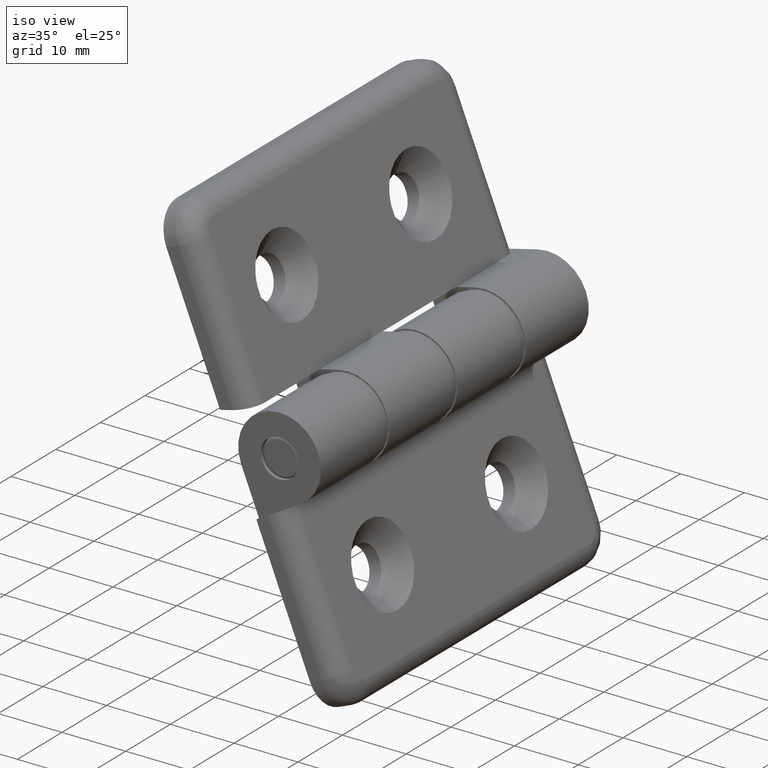
[diagram: clean part render]
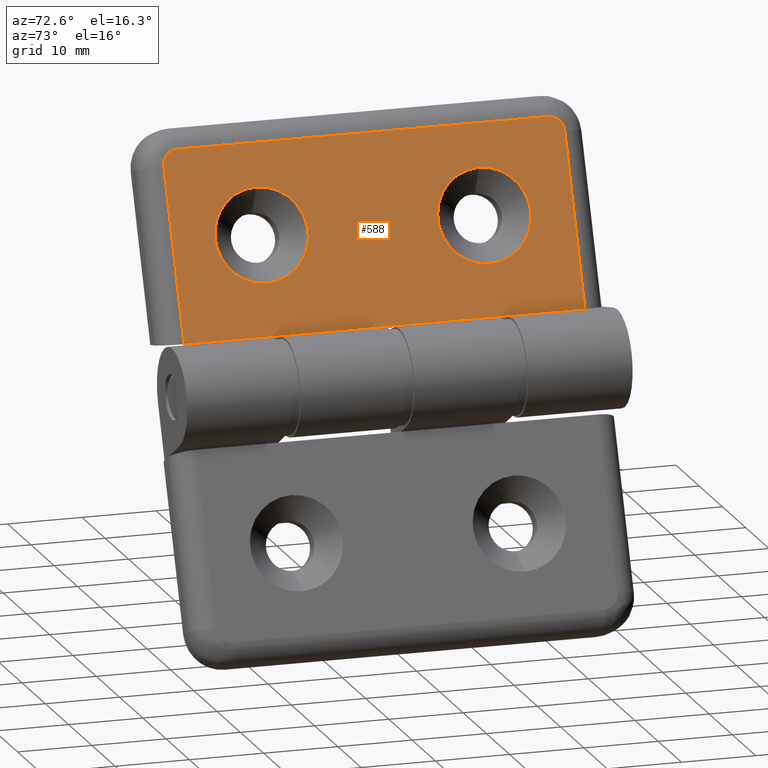
[diagram: tour spotlight — one face highlighted and labeled with its STEP entity id]
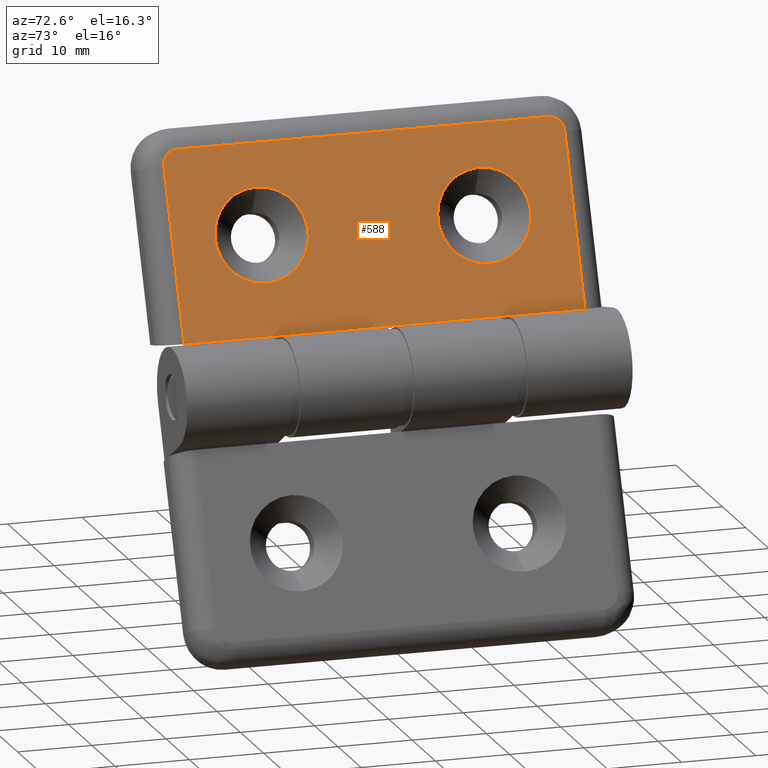
[diagram: tour spotlight — one face highlighted and labeled with its STEP entity id]
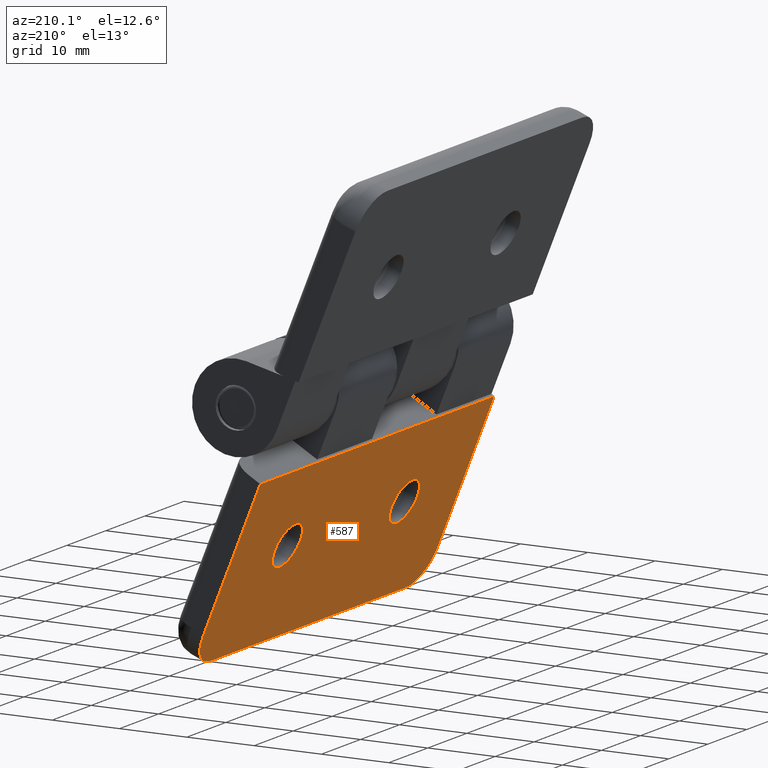
[diagram: tour spotlight — one face highlighted and labeled with its STEP entity id]
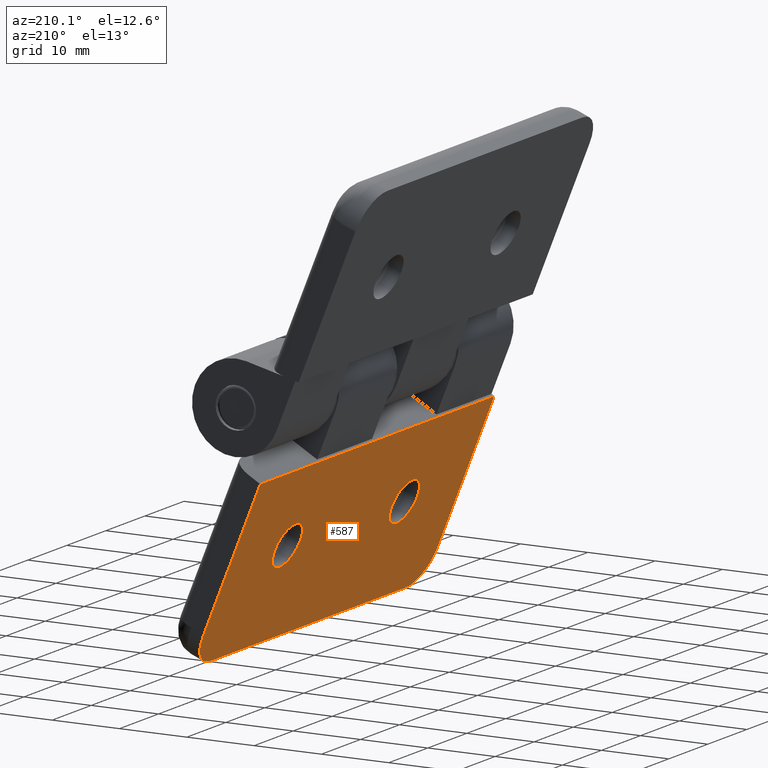
[diagram: tour spotlight — one face highlighted and labeled with its STEP entity id]
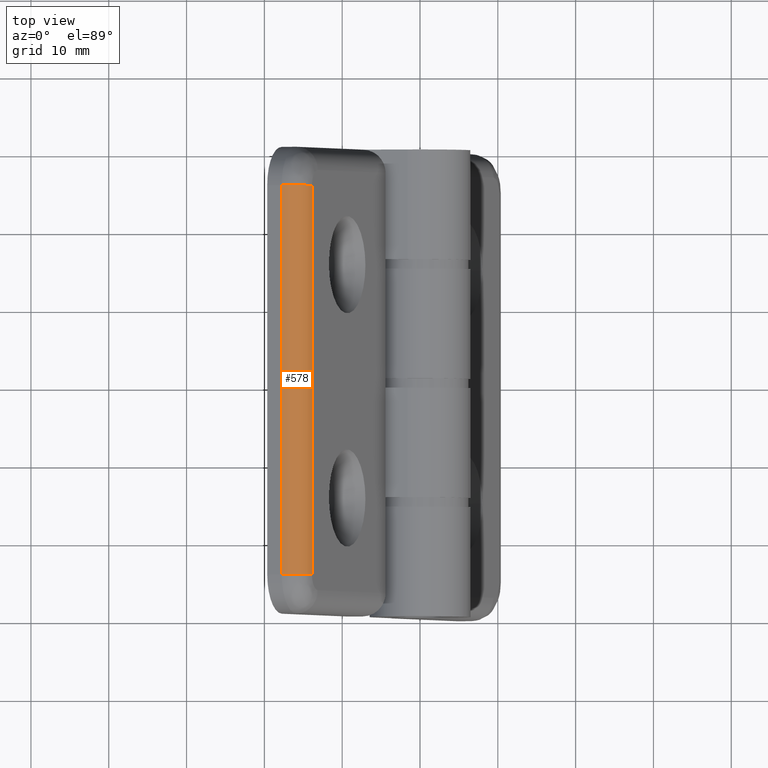
[diagram: tour spotlight — one face highlighted and labeled with its STEP entity id]
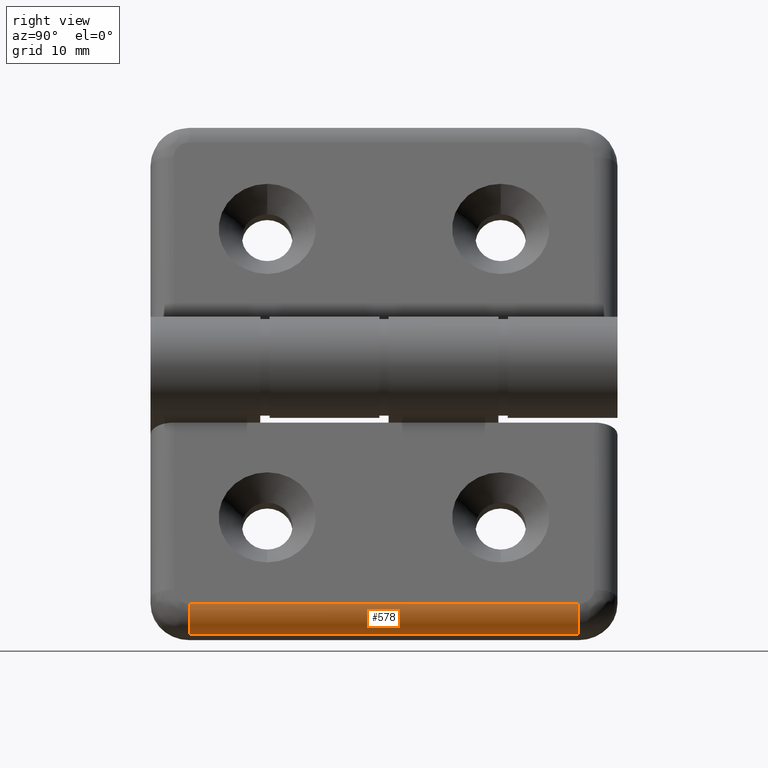
[diagram: tour spotlight — one face highlighted and labeled with its STEP entity id]
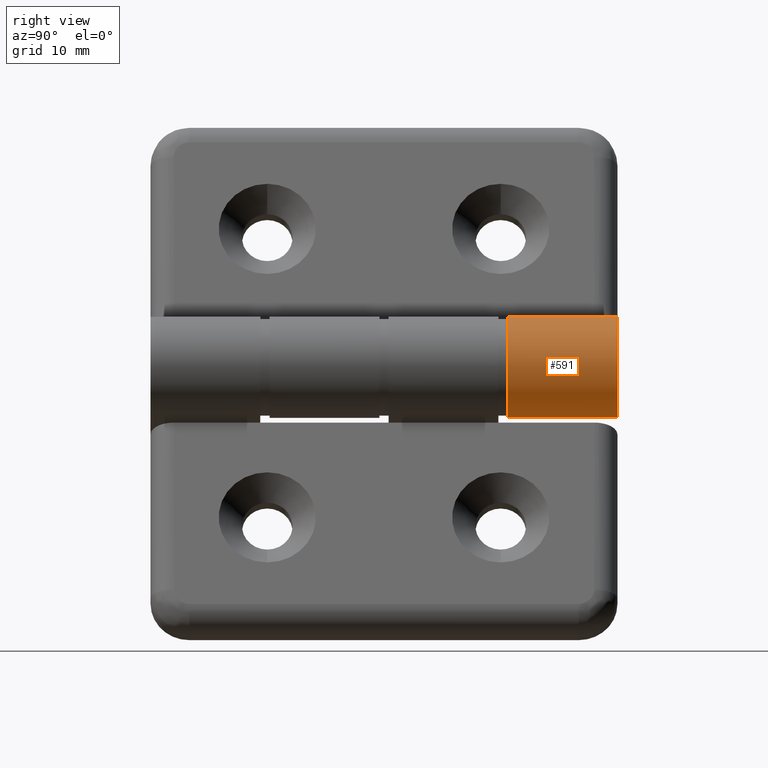
[diagram: tour spotlight — one face highlighted and labeled with its STEP entity id]
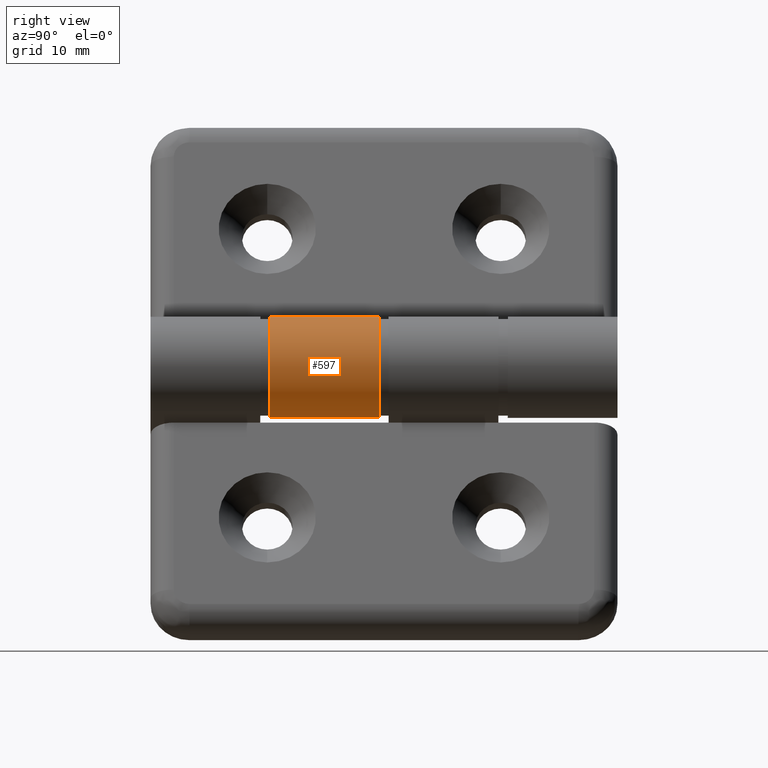
[diagram: tour spotlight — one face highlighted and labeled with its STEP entity id]
A machine part: a face-by-face anatomy tour. The part has 73 B-rep faces; the first image is the clean iso view, then the 8 largest visible faces are spotlighted one at a time (largest first), each with its STEP entity span.

Face 1 — auxiliary view, entity #588. In plain terms, the highlighted planar face has unit normal (0.9268, -0, 0.3755).
Definition (entity closure, byte-faithful):
#54=PLANE('',#647);
#70=LINE('',#908,#107);
#72=LINE('',#930,#109);
#74=LINE('',#950,#111);
#81=LINE('',#964,#118);
#85=LINE('',#971,#122);
#95=LINE('',#999,#132);
#96=LINE('',#1000,#133);
#107=VECTOR('',#717,23.1461538461538);
#109=VECTOR('',#731,50.);
#111=VECTOR('',#743,23.1461538461538);
#118=VECTOR('',#752,16.5);
#122=VECTOR('',#756,12.3);
#132=VECTOR('',#788,14.1);
#133=VECTOR('',#789,11.1);
#165=FACE_BOUND('',#240,.T.);
#166=FACE_BOUND('',#241,.T.);
#195=FACE_OUTER_BOUND('',#239,.T.);
#239=EDGE_LOOP('',(#499,#500,#501,#502,#503,#504,#505,#506,#507));
#240=EDGE_LOOP('',(#508));
#241=EDGE_LOOP('',(#509));
#274=CIRCLE('',#614,6.25);
#277=CIRCLE('',#619,6.25);
#282=CIRCLE('',#627,2.);
#286=CIRCLE('',#632,2.);
#306=VERTEX_POINT('',#888);
#309=VERTEX_POINT('',#896);
#313=VERTEX_POINT('',#905);
#314=VERTEX_POINT('',#907);
#317=VERTEX_POINT('',#922);
#319=VERTEX_POINT('',#928);
#321=VERTEX_POINT('',#942);
#323=VERTEX_POINT('',#948);
#328=VERTEX_POINT('',#961);
#329=VERTEX_POINT('',#963);
#332=VERTEX_POINT('',#969);
#357=EDGE_CURVE('',#306,#306,#274,.T.);
#360=EDGE_CURVE('',#309,#309,#277,.T.);
#364=EDGE_CURVE('',#313,#314,#70,.T.);
#368=EDGE_CURVE('',#317,#313,#282,.T.);
#371=EDGE_CURVE('',#319,#317,#72,.T.);
#374=EDGE_CURVE('',#321,#319,#286,.T.);
#377=EDGE_CURVE('',#323,#321,#74,.T.);
#384=EDGE_CURVE('',#328,#329,#81,.T.);
#388=EDGE_CURVE('',#332,#323,#85,.T.);
#402=EDGE_CURVE('',#329,#332,#95,.T.);
#403=EDGE_CURVE('',#314,#328,#96,.T.);
#499=ORIENTED_EDGE('',*,*,#377,.F.);
#500=ORIENTED_EDGE('',*,*,#388,.F.);
#501=ORIENTED_EDGE('',*,*,#402,.F.);
#502=ORIENTED_EDGE('',*,*,#384,.F.);
#503=ORIENTED_EDGE('',*,*,#403,.F.);
#504=ORIENTED_EDGE('',*,*,#364,.F.);
#505=ORIENTED_EDGE('',*,*,#368,.F.);
#506=ORIENTED_EDGE('',*,*,#371,.F.);
#507=ORIENTED_EDGE('',*,*,#374,.F.);
#508=ORIENTED_EDGE('',*,*,#357,.T.);
#509=ORIENTED_EDGE('',*,*,#360,.T.);
#588=ADVANCED_FACE('',(#195,#165,#166),#54,.T.);
#614=AXIS2_PLACEMENT_3D('',#889,#695,#696);
#619=AXIS2_PLACEMENT_3D('',#897,#705,#706);
#627=AXIS2_PLACEMENT_3D('',#924,#723,#724);
#632=AXIS2_PLACEMENT_3D('',#944,#735,#736);
#647=AXIS2_PLACEMENT_3D('',#998,#786,#787);
#695=DIRECTION('center_axis',(0.,1.38777878078145E-16,-1.));
#696=DIRECTION('ref_axis',(1.,1.08845394571094E-16,1.51053328971548E-32));
#705=DIRECTION('center_axis',(0.,1.38777878078145E-16,-1.));
#706=DIRECTION('ref_axis',(1.,1.08845394571094E-16,1.51053328971548E-32));
#717=DIRECTION('',(-1.,0.,0.));
#723=DIRECTION('center_axis',(0.,1.38777878078145E-16,-1.));
#724=DIRECTION('ref_axis',(0.707106781186548,-0.707106781186547,-9.81307786677359E-17));
#731=DIRECTION('',(0.,-1.,-1.38777878078145E-16));
#735=DIRECTION('center_axis',(0.,1.38777878078145E-16,-1.));
#736=DIRECTION('ref_axis',(0.707106781186547,0.707106781186548,9.8130778667736E-17));
#743=DIRECTION('',(1.,0.,0.));
#752=DIRECTION('',(-1.99270799291695E-17,1.,1.38777878078145E-16));
#756=DIRECTION('',(-1.99270799291695E-17,1.,1.38777878078145E-16));
#786=DIRECTION('center_axis',(0.,-1.38777878078145E-16,1.));
#787=DIRECTION('ref_axis',(0.,1.,1.77635683940025E-16));
#788=DIRECTION('',(-1.99270799291695E-17,1.,1.38777878078145E-16));
#789=DIRECTION('',(-1.99270799291695E-17,1.,1.38777878078145E-16));
#888=CARTESIAN_POINT('',(18.75,15.,4.99999999999999));
#889=CARTESIAN_POINT('Origin',(12.5,15.,4.99999999999999));
#896=CARTESIAN_POINT('',(18.75,45.,5.));
#897=CARTESIAN_POINT('Origin',(12.5,45.,5.));
#905=CARTESIAN_POINT('',(22.5,3.,4.99999999999999));
#907=CARTESIAN_POINT('',(-0.646153846153845,3.,4.99999999999999));
#908=CARTESIAN_POINT('',(10.5926638014431,3.,4.99999999999999));
#922=CARTESIAN_POINT('',(24.5,5.,4.99999999999999));
#924=CARTESIAN_POINT('Origin',(22.5,5.,4.99999999999999));
#928=CARTESIAN_POINT('',(24.5,55.,5.));
#930=CARTESIAN_POINT('',(24.5,15.,4.99999999999999));
#942=CARTESIAN_POINT('',(22.5,57.,5.));
#944=CARTESIAN_POINT('Origin',(22.5,55.,5.));
#948=CARTESIAN_POINT('',(-0.646153846153846,57.,5.));
#950=CARTESIAN_POINT('',(27.5,57.,5.));
#961=CARTESIAN_POINT('',(-0.646153846153845,14.1,4.99999999999999));
#963=CARTESIAN_POINT('',(-0.646153846153845,30.6,5.));
#964=CARTESIAN_POINT('',(-0.646153846153845,15.,4.99999999999999));
#969=CARTESIAN_POINT('',(-0.646153846153846,44.7,5.));
#971=CARTESIAN_POINT('',(-0.646153846153845,15.,4.99999999999999));
#998=CARTESIAN_POINT('Origin',(27.5,0.,4.99999999999999));
#999=CARTESIAN_POINT('',(-0.646153846153845,-7.33688805523977E-17,4.99999999999999));
#1000=CARTESIAN_POINT('',(-0.646153846153845,-7.33688805523977E-17,4.99999999999999));

Face 2 — auxiliary view, entity #588. In plain terms, the highlighted planar face has unit normal (0.9268, 0, 0.3755).
Definition (entity closure, byte-faithful):
#54=PLANE('',#647);
#70=LINE('',#908,#107);
#72=LINE('',#930,#109);
#74=LINE('',#950,#111);
#81=LINE('',#964,#118);
#85=LINE('',#971,#122);
#95=LINE('',#999,#132);
#96=LINE('',#1000,#133);
#107=VECTOR('',#717,23.1461538461538);
#109=VECTOR('',#731,50.);
#111=VECTOR('',#743,23.1461538461538);
#118=VECTOR('',#752,16.5);
#122=VECTOR('',#756,12.3);
#132=VECTOR('',#788,14.1);
#133=VECTOR('',#789,11.1);
#165=FACE_BOUND('',#240,.T.);
#166=FACE_BOUND('',#241,.T.);
#195=FACE_OUTER_BOUND('',#239,.T.);
#239=EDGE_LOOP('',(#499,#500,#501,#502,#503,#504,#505,#506,#507));
#240=EDGE_LOOP('',(#508));
#241=EDGE_LOOP('',(#509));
#274=CIRCLE('',#614,6.25);
#277=CIRCLE('',#619,6.25);
#282=CIRCLE('',#627,2.);
#286=CIRCLE('',#632,2.);
#306=VERTEX_POINT('',#888);
#309=VERTEX_POINT('',#896);
#313=VERTEX_POINT('',#905);
#314=VERTEX_POINT('',#907);
#317=VERTEX_POINT('',#922);
#319=VERTEX_POINT('',#928);
#321=VERTEX_POINT('',#942);
#323=VERTEX_POINT('',#948);
#328=VERTEX_POINT('',#961);
#329=VERTEX_POINT('',#963);
#332=VERTEX_POINT('',#969);
#357=EDGE_CURVE('',#306,#306,#274,.T.);
#360=EDGE_CURVE('',#309,#309,#277,.T.);
#364=EDGE_CURVE('',#313,#314,#70,.T.);
#368=EDGE_CURVE('',#317,#313,#282,.T.);
#371=EDGE_CURVE('',#319,#317,#72,.T.);
#374=EDGE_CURVE('',#321,#319,#286,.T.);
#377=EDGE_CURVE('',#323,#321,#74,.T.);
#384=EDGE_CURVE('',#328,#329,#81,.T.);
#388=EDGE_CURVE('',#332,#323,#85,.T.);
#402=EDGE_CURVE('',#329,#332,#95,.T.);
#403=EDGE_CURVE('',#314,#328,#96,.T.);
#499=ORIENTED_EDGE('',*,*,#377,.F.);
#500=ORIENTED_EDGE('',*,*,#388,.F.);
#501=ORIENTED_EDGE('',*,*,#402,.F.);
#502=ORIENTED_EDGE('',*,*,#384,.F.);
#503=ORIENTED_EDGE('',*,*,#403,.F.);
#504=ORIENTED_EDGE('',*,*,#364,.F.);
#505=ORIENTED_EDGE('',*,*,#368,.F.);
#506=ORIENTED_EDGE('',*,*,#371,.F.);
#507=ORIENTED_EDGE('',*,*,#374,.F.);
#508=ORIENTED_EDGE('',*,*,#357,.T.);
#509=ORIENTED_EDGE('',*,*,#360,.T.);
#588=ADVANCED_FACE('',(#195,#165,#166),#54,.T.);
#614=AXIS2_PLACEMENT_3D('',#889,#695,#696);
#619=AXIS2_PLACEMENT_3D('',#897,#705,#706);
#627=AXIS2_PLACEMENT_3D('',#924,#723,#724);
#632=AXIS2_PLACEMENT_3D('',#944,#735,#736);
#647=AXIS2_PLACEMENT_3D('',#998,#786,#787);
#695=DIRECTION('center_axis',(0.,1.38777878078145E-16,-1.));
#696=DIRECTION('ref_axis',(1.,1.08845394571094E-16,1.51053328971548E-32));
#705=DIRECTION('center_axis',(0.,1.38777878078145E-16,-1.));
#706=DIRECTION('ref_axis',(1.,1.08845394571094E-16,1.51053328971548E-32));
#717=DIRECTION('',(-1.,0.,0.));
#723=DIRECTION('center_axis',(0.,1.38777878078145E-16,-1.));
#724=DIRECTION('ref_axis',(0.707106781186548,-0.707106781186547,-9.81307786677359E-17));
#731=DIRECTION('',(0.,-1.,-1.38777878078145E-16));
#735=DIRECTION('center_axis',(0.,1.38777878078145E-16,-1.));
#736=DIRECTION('ref_axis',(0.707106781186547,0.707106781186548,9.8130778667736E-17));
#743=DIRECTION('',(1.,0.,0.));
#752=DIRECTION('',(-1.99270799291695E-17,1.,1.38777878078145E-16));
#756=DIRECTION('',(-1.99270799291695E-17,1.,1.38777878078145E-16));
#786=DIRECTION('center_axis',(0.,-1.38777878078145E-16,1.));
#787=DIRECTION('ref_axis',(0.,1.,1.77635683940025E-16));
#788=DIRECTION('',(-1.99270799291695E-17,1.,1.38777878078145E-16));
#789=DIRECTION('',(-1.99270799291695E-17,1.,1.38777878078145E-16));
#888=CARTESIAN_POINT('',(18.75,15.,4.99999999999999));
#889=CARTESIAN_POINT('Origin',(12.5,15.,4.99999999999999));
#896=CARTESIAN_POINT('',(18.75,45.,5.));
#897=CARTESIAN_POINT('Origin',(12.5,45.,5.));
#905=CARTESIAN_POINT('',(22.5,3.,4.99999999999999));
#907=CARTESIAN_POINT('',(-0.646153846153845,3.,4.99999999999999));
#908=CARTESIAN_POINT('',(10.5926638014431,3.,4.99999999999999));
#922=CARTESIAN_POINT('',(24.5,5.,4.99999999999999));
#924=CARTESIAN_POINT('Origin',(22.5,5.,4.99999999999999));
#928=CARTESIAN_POINT('',(24.5,55.,5.));
#930=CARTESIAN_POINT('',(24.5,15.,4.99999999999999));
#942=CARTESIAN_POINT('',(22.5,57.,5.));
#944=CARTESIAN_POINT('Origin',(22.5,55.,5.));
#948=CARTESIAN_POINT('',(-0.646153846153846,57.,5.));
#950=CARTESIAN_POINT('',(27.5,57.,5.));
#961=CARTESIAN_POINT('',(-0.646153846153845,14.1,4.99999999999999));
#963=CARTESIAN_POINT('',(-0.646153846153845,30.6,5.));
#964=CARTESIAN_POINT('',(-0.646153846153845,15.,4.99999999999999));
#969=CARTESIAN_POINT('',(-0.646153846153846,44.7,5.));
#971=CARTESIAN_POINT('',(-0.646153846153845,15.,4.99999999999999));
#998=CARTESIAN_POINT('Origin',(27.5,0.,4.99999999999999));
#999=CARTESIAN_POINT('',(-0.646153846153845,-7.33688805523977E-17,4.99999999999999));
#1000=CARTESIAN_POINT('',(-0.646153846153845,-7.33688805523977E-17,4.99999999999999));

Face 3 — auxiliary view, entity #587. In plain terms, the highlighted planar face has unit normal (-0.9268, -0, -0.3755).
Definition (entity closure, byte-faithful):
#53=PLANE('',#646);
#77=LINE('',#956,#114);
#87=LINE('',#975,#124);
#90=LINE('',#983,#127);
#94=LINE('',#994,#131);
#114=VECTOR('',#748,60.);
#124=VECTOR('',#760,22.4282051282051);
#127=VECTOR('',#769,50.);
#131=VECTOR('',#781,22.4282051282051);
#163=FACE_BOUND('',#237,.T.);
#164=FACE_BOUND('',#238,.T.);
#194=FACE_OUTER_BOUND('',#236,.T.);
#236=EDGE_LOOP('',(#491,#492,#493,#494,#495,#496));
#237=EDGE_LOOP('',(#497));
#238=EDGE_LOOP('',(#498));
#276=CIRCLE('',#617,3.25);
#279=CIRCLE('',#622,3.25);
#288=CIRCLE('',#639,5.);
#289=CIRCLE('',#642,5.);
#308=VERTEX_POINT('',#893);
#311=VERTEX_POINT('',#901);
#324=VERTEX_POINT('',#953);
#325=VERTEX_POINT('',#955);
#333=VERTEX_POINT('',#973);
#334=VERTEX_POINT('',#977);
#335=VERTEX_POINT('',#981);
#336=VERTEX_POINT('',#985);
#359=EDGE_CURVE('',#308,#308,#276,.T.);
#362=EDGE_CURVE('',#311,#311,#279,.T.);
#380=EDGE_CURVE('',#324,#325,#77,.T.);
#390=EDGE_CURVE('',#333,#324,#87,.T.);
#392=EDGE_CURVE('',#334,#333,#288,.T.);
#394=EDGE_CURVE('',#335,#334,#90,.T.);
#396=EDGE_CURVE('',#336,#335,#289,.T.);
#400=EDGE_CURVE('',#336,#325,#94,.T.);
#491=ORIENTED_EDGE('',*,*,#392,.F.);
#492=ORIENTED_EDGE('',*,*,#394,.F.);
#493=ORIENTED_EDGE('',*,*,#396,.F.);
#494=ORIENTED_EDGE('',*,*,#400,.T.);
#495=ORIENTED_EDGE('',*,*,#380,.F.);
#496=ORIENTED_EDGE('',*,*,#390,.F.);
#497=ORIENTED_EDGE('',*,*,#359,.T.);
#498=ORIENTED_EDGE('',*,*,#362,.T.);
#587=ADVANCED_FACE('',(#194,#163,#164),#53,.T.);
#617=AXIS2_PLACEMENT_3D('',#894,#701,#702);
#622=AXIS2_PLACEMENT_3D('',#902,#711,#712);
#639=AXIS2_PLACEMENT_3D('',#979,#764,#765);
#642=AXIS2_PLACEMENT_3D('',#987,#773,#774);
#646=AXIS2_PLACEMENT_3D('',#997,#784,#785);
#701=DIRECTION('center_axis',(0.,0.,1.));
#702=DIRECTION('ref_axis',(1.,1.08845394571094E-16,1.51053328971548E-32));
#711=DIRECTION('center_axis',(0.,0.,1.));
#712=DIRECTION('ref_axis',(1.,1.08845394571094E-16,1.51053328971548E-32));
#748=DIRECTION('',(0.,-1.,0.));
#760=DIRECTION('',(-1.,0.,0.));
#764=DIRECTION('center_axis',(0.,0.,1.));
#765=DIRECTION('ref_axis',(0.707106781186547,0.707106781186547,0.));
#769=DIRECTION('',(0.,1.,0.));
#773=DIRECTION('center_axis',(0.,0.,1.));
#774=DIRECTION('ref_axis',(0.707106781186547,-0.707106781186547,0.));
#781=DIRECTION('',(-1.,0.,0.));
#784=DIRECTION('center_axis',(0.,0.,-1.));
#785=DIRECTION('ref_axis',(0.,-1.,0.));
#893=CARTESIAN_POINT('',(9.25,15.,-8.88178419700125E-15));
#894=CARTESIAN_POINT('Origin',(12.5,15.,-8.88178419700125E-15));
#901=CARTESIAN_POINT('',(9.25,45.,-4.90923319157531E-32));
#902=CARTESIAN_POINT('Origin',(12.5,45.,0.));
#953=CARTESIAN_POINT('',(0.0717948717948724,60.,0.));
#955=CARTESIAN_POINT('',(0.0717948717948724,0.,0.));
#956=CARTESIAN_POINT('',(0.0717948717948724,45.,0.));
#973=CARTESIAN_POINT('',(22.5,60.,0.));
#975=CARTESIAN_POINT('',(27.5,60.,0.));
#977=CARTESIAN_POINT('',(27.5,55.,0.));
#979=CARTESIAN_POINT('Origin',(22.5,55.,0.));
#981=CARTESIAN_POINT('',(27.5,5.,0.));
#983=CARTESIAN_POINT('',(27.5,0.,0.));
#985=CARTESIAN_POINT('',(22.5,0.,0.));
#987=CARTESIAN_POINT('Origin',(22.5,5.,0.));
#994=CARTESIAN_POINT('',(27.5,0.,0.));
#997=CARTESIAN_POINT('Origin',(27.5,60.,0.));

Face 4 — auxiliary view, entity #587. In plain terms, the highlighted planar face has unit normal (-0.9268, 0, -0.3755).
Definition (entity closure, byte-faithful):
#53=PLANE('',#646);
#77=LINE('',#956,#114);
#87=LINE('',#975,#124);
#90=LINE('',#983,#127);
#94=LINE('',#994,#131);
#114=VECTOR('',#748,60.);
#124=VECTOR('',#760,22.4282051282051);
#127=VECTOR('',#769,50.);
#131=VECTOR('',#781,22.4282051282051);
#163=FACE_BOUND('',#237,.T.);
#164=FACE_BOUND('',#238,.T.);
#194=FACE_OUTER_BOUND('',#236,.T.);
#236=EDGE_LOOP('',(#491,#492,#493,#494,#495,#496));
#237=EDGE_LOOP('',(#497));
#238=EDGE_LOOP('',(#498));
#276=CIRCLE('',#617,3.25);
#279=CIRCLE('',#622,3.25);
#288=CIRCLE('',#639,5.);
#289=CIRCLE('',#642,5.);
#308=VERTEX_POINT('',#893);
#311=VERTEX_POINT('',#901);
#324=VERTEX_POINT('',#953);
#325=VERTEX_POINT('',#955);
#333=VERTEX_POINT('',#973);
#334=VERTEX_POINT('',#977);
#335=VERTEX_POINT('',#981);
#336=VERTEX_POINT('',#985);
#359=EDGE_CURVE('',#308,#308,#276,.T.);
#362=EDGE_CURVE('',#311,#311,#279,.T.);
#380=EDGE_CURVE('',#324,#325,#77,.T.);
#390=EDGE_CURVE('',#333,#324,#87,.T.);
#392=EDGE_CURVE('',#334,#333,#288,.T.);
#394=EDGE_CURVE('',#335,#334,#90,.T.);
#396=EDGE_CURVE('',#336,#335,#289,.T.);
#400=EDGE_CURVE('',#336,#325,#94,.T.);
#491=ORIENTED_EDGE('',*,*,#392,.F.);
#492=ORIENTED_EDGE('',*,*,#394,.F.);
#493=ORIENTED_EDGE('',*,*,#396,.F.);
#494=ORIENTED_EDGE('',*,*,#400,.T.);
#495=ORIENTED_EDGE('',*,*,#380,.F.);
#496=ORIENTED_EDGE('',*,*,#390,.F.);
#497=ORIENTED_EDGE('',*,*,#359,.T.);
#498=ORIENTED_EDGE('',*,*,#362,.T.);
#587=ADVANCED_FACE('',(#194,#163,#164),#53,.T.);
#617=AXIS2_PLACEMENT_3D('',#894,#701,#702);
#622=AXIS2_PLACEMENT_3D('',#902,#711,#712);
#639=AXIS2_PLACEMENT_3D('',#979,#764,#765);
#642=AXIS2_PLACEMENT_3D('',#987,#773,#774);
#646=AXIS2_PLACEMENT_3D('',#997,#784,#785);
#701=DIRECTION('center_axis',(0.,0.,1.));
#702=DIRECTION('ref_axis',(1.,1.08845394571094E-16,1.51053328971548E-32));
#711=DIRECTION('center_axis',(0.,0.,1.));
#712=DIRECTION('ref_axis',(1.,1.08845394571094E-16,1.51053328971548E-32));
#748=DIRECTION('',(0.,-1.,0.));
#760=DIRECTION('',(-1.,0.,0.));
#764=DIRECTION('center_axis',(0.,0.,1.));
#765=DIRECTION('ref_axis',(0.707106781186547,0.707106781186547,0.));
#769=DIRECTION('',(0.,1.,0.));
#773=DIRECTION('center_axis',(0.,0.,1.));
#774=DIRECTION('ref_axis',(0.707106781186547,-0.707106781186547,0.));
#781=DIRECTION('',(-1.,0.,0.));
#784=DIRECTION('center_axis',(0.,0.,-1.));
#785=DIRECTION('ref_axis',(0.,-1.,0.));
#893=CARTESIAN_POINT('',(9.25,15.,-8.88178419700125E-15));
#894=CARTESIAN_POINT('Origin',(12.5,15.,-8.88178419700125E-15));
#901=CARTESIAN_POINT('',(9.25,45.,-4.90923319157531E-32));
#902=CARTESIAN_POINT('Origin',(12.5,45.,0.));
#953=CARTESIAN_POINT('',(0.0717948717948724,60.,0.));
#955=CARTESIAN_POINT('',(0.0717948717948724,0.,0.));
#956=CARTESIAN_POINT('',(0.0717948717948724,45.,0.));
#973=CARTESIAN_POINT('',(22.5,60.,0.));
#975=CARTESIAN_POINT('',(27.5,60.,0.));
#977=CARTESIAN_POINT('',(27.5,55.,0.));
#979=CARTESIAN_POINT('Origin',(22.5,55.,0.));
#981=CARTESIAN_POINT('',(27.5,5.,0.));
#983=CARTESIAN_POINT('',(27.5,0.,0.));
#985=CARTESIAN_POINT('',(22.5,0.,0.));
#987=CARTESIAN_POINT('Origin',(22.5,5.,0.));
#994=CARTESIAN_POINT('',(27.5,0.,0.));
#997=CARTESIAN_POINT('Origin',(27.5,60.,0.));

Face 5 — top view, entity #578. In plain terms, the highlighted cylindrical surface (edge-blend (fillet) strip) has radius 3 mm, axis along (-0, 1, -0).
Definition (entity closure, byte-faithful):
#72=LINE('',#930,#109);
#73=LINE('',#931,#110);
#109=VECTOR('',#731,50.);
#110=VECTOR('',#732,50.);
#147=CYLINDRICAL_SURFACE('',#629,3.);
#185=FACE_OUTER_BOUND('',#226,.T.);
#226=EDGE_LOOP('',(#444,#445,#446,#447));
#281=CIRCLE('',#626,3.);
#284=CIRCLE('',#630,3.);
#316=VERTEX_POINT('',#921);
#317=VERTEX_POINT('',#922);
#318=VERTEX_POINT('',#927);
#319=VERTEX_POINT('',#928);
#367=EDGE_CURVE('',#316,#317,#281,.T.);
#370=EDGE_CURVE('',#318,#319,#284,.T.);
#371=EDGE_CURVE('',#319,#317,#72,.T.);
#372=EDGE_CURVE('',#316,#318,#73,.T.);
#444=ORIENTED_EDGE('',*,*,#370,.T.);
#445=ORIENTED_EDGE('',*,*,#371,.T.);
#446=ORIENTED_EDGE('',*,*,#367,.F.);
#447=ORIENTED_EDGE('',*,*,#372,.T.);
#578=ADVANCED_FACE('',(#185),#147,.T.);
#626=AXIS2_PLACEMENT_3D('',#923,#721,#722);
#629=AXIS2_PLACEMENT_3D('',#926,#727,#728);
#630=AXIS2_PLACEMENT_3D('',#929,#729,#730);
#721=DIRECTION('center_axis',(1.71193772834421E-32,-1.,-1.85037170770859E-16));
#722=DIRECTION('ref_axis',(1.,0.,9.25185853854298E-17));
#727=DIRECTION('center_axis',(0.,-1.,-1.38777878078145E-16));
#728=DIRECTION('ref_axis',(0.707106781186547,0.,0.707106781186548));
#729=DIRECTION('center_axis',(0.,-1.,0.));
#730=DIRECTION('ref_axis',(1.,0.,0.));
#731=DIRECTION('',(0.,-1.,-1.38777878078145E-16));
#732=DIRECTION('',(0.,1.,1.38777878078145E-16));
#921=CARTESIAN_POINT('',(27.5,5.,1.99999999999999));
#922=CARTESIAN_POINT('',(24.5,5.,4.99999999999999));
#923=CARTESIAN_POINT('Origin',(24.5,5.,1.99999999999999));
#926=CARTESIAN_POINT('Origin',(24.5,15.,1.99999999999999));
#927=CARTESIAN_POINT('',(27.5,55.,2.));
#928=CARTESIAN_POINT('',(24.5,55.,5.));
#929=CARTESIAN_POINT('Origin',(24.5,55.,2.));
#930=CARTESIAN_POINT('',(24.5,15.,4.99999999999999));
#931=CARTESIAN_POINT('',(27.5,15.,1.99999999999999));

Face 6 — right view, entity #578. In plain terms, the highlighted cylindrical surface (edge-blend (fillet) strip) has radius 3 mm, axis along (0, -1, -0).
Definition (entity closure, byte-faithful):
#72=LINE('',#930,#109);
#73=LINE('',#931,#110);
#109=VECTOR('',#731,50.);
#110=VECTOR('',#732,50.);
#147=CYLINDRICAL_SURFACE('',#629,3.);
#185=FACE_OUTER_BOUND('',#226,.T.);
#226=EDGE_LOOP('',(#444,#445,#446,#447));
#281=CIRCLE('',#626,3.);
#284=CIRCLE('',#630,3.);
#316=VERTEX_POINT('',#921);
#317=VERTEX_POINT('',#922);
#318=VERTEX_POINT('',#927);
#319=VERTEX_POINT('',#928);
#367=EDGE_CURVE('',#316,#317,#281,.T.);
#370=EDGE_CURVE('',#318,#319,#284,.T.);
#371=EDGE_CURVE('',#319,#317,#72,.T.);
#372=EDGE_CURVE('',#316,#318,#73,.T.);
#444=ORIENTED_EDGE('',*,*,#370,.T.);
#445=ORIENTED_EDGE('',*,*,#371,.T.);
#446=ORIENTED_EDGE('',*,*,#367,.F.);
#447=ORIENTED_EDGE('',*,*,#372,.T.);
#578=ADVANCED_FACE('',(#185),#147,.T.);
#626=AXIS2_PLACEMENT_3D('',#923,#721,#722);
#629=AXIS2_PLACEMENT_3D('',#926,#727,#728);
#630=AXIS2_PLACEMENT_3D('',#929,#729,#730);
#721=DIRECTION('center_axis',(1.71193772834421E-32,-1.,-1.85037170770859E-16));
#722=DIRECTION('ref_axis',(1.,0.,9.25185853854298E-17));
#727=DIRECTION('center_axis',(0.,-1.,-1.38777878078145E-16));
#728=DIRECTION('ref_axis',(0.707106781186547,0.,0.707106781186548));
#729=DIRECTION('center_axis',(0.,-1.,0.));
#730=DIRECTION('ref_axis',(1.,0.,0.));
#731=DIRECTION('',(0.,-1.,-1.38777878078145E-16));
#732=DIRECTION('',(0.,1.,1.38777878078145E-16));
#921=CARTESIAN_POINT('',(27.5,5.,1.99999999999999));
#922=CARTESIAN_POINT('',(24.5,5.,4.99999999999999));
#923=CARTESIAN_POINT('Origin',(24.5,5.,1.99999999999999));
#926=CARTESIAN_POINT('Origin',(24.5,15.,1.99999999999999));
#927=CARTESIAN_POINT('',(27.5,55.,2.));
#928=CARTESIAN_POINT('',(24.5,55.,5.));
#929=CARTESIAN_POINT('Origin',(24.5,55.,2.));
#930=CARTESIAN_POINT('',(24.5,15.,4.99999999999999));
#931=CARTESIAN_POINT('',(27.5,15.,1.99999999999999));

Face 7 — right view, entity #591. In plain terms, the highlighted cylindrical surface (partial cylindrical patch) has radius 6.5 mm, axis along (-0, -1, 0).
Definition (entity closure, byte-faithful):
#98=LINE('',#1007,#135);
#99=LINE('',#1011,#136);
#135=VECTOR('',#797,14.1);
#136=VECTOR('',#802,14.1);
#152=CYLINDRICAL_SURFACE('',#651,6.5);
#198=FACE_OUTER_BOUND('',#245,.T.);
#245=EDGE_LOOP('',(#517,#518,#519,#520));
#290=CIRCLE('',#644,6.5);
#293=CIRCLE('',#652,6.5);
#337=VERTEX_POINT('',#989);
#338=VERTEX_POINT('',#991);
#341=VERTEX_POINT('',#1005);
#342=VERTEX_POINT('',#1009);
#398=EDGE_CURVE('',#338,#337,#290,.T.);
#406=EDGE_CURVE('',#337,#341,#98,.T.);
#407=EDGE_CURVE('',#341,#342,#293,.T.);
#408=EDGE_CURVE('',#338,#342,#99,.T.);
#517=ORIENTED_EDGE('',*,*,#407,.T.);
#518=ORIENTED_EDGE('',*,*,#408,.F.);
#519=ORIENTED_EDGE('',*,*,#398,.T.);
#520=ORIENTED_EDGE('',*,*,#406,.T.);
#591=ADVANCED_FACE('',(#198),#152,.T.);
#644=AXIS2_PLACEMENT_3D('',#992,#778,#779);
#651=AXIS2_PLACEMENT_3D('',#1008,#798,#799);
#652=AXIS2_PLACEMENT_3D('',#1010,#800,#801);
#778=DIRECTION('center_axis',(0.,1.,0.));
#779=DIRECTION('ref_axis',(0.,0.,-1.));
#797=DIRECTION('',(0.,1.,0.));
#798=DIRECTION('center_axis',(0.,1.,0.));
#799=DIRECTION('ref_axis',(0.,0.,-1.));
#800=DIRECTION('center_axis',(-1.38777878078145E-16,-1.,1.02716263700653E-32));
#801=DIRECTION('ref_axis',(0.,0.,-1.));
#802=DIRECTION('',(0.,1.,0.));
#989=CARTESIAN_POINT('',(-1.06598984771574,0.,7.92385786802031));
#991=CARTESIAN_POINT('',(-7.5,0.,0.500000000000001));
#992=CARTESIAN_POINT('Origin',(-7.5,0.,7.));
#1005=CARTESIAN_POINT('',(-1.06598984771574,14.1,7.92385786802031));
#1007=CARTESIAN_POINT('',(-1.06598984771574,0.,7.92385786802031));
#1008=CARTESIAN_POINT('Origin',(-7.5,0.,7.));
#1009=CARTESIAN_POINT('',(-7.5,14.1,0.5));
#1010=CARTESIAN_POINT('Origin',(-7.5,14.1,7.));
#1011=CARTESIAN_POINT('',(-7.5,0.,0.500000000000001));

Face 8 — right view, entity #597. In plain terms, the highlighted cylindrical surface (partial cylindrical patch) has radius 6.5 mm, axis along (-0, -1, 0).
Definition (entity closure, byte-faithful):
#105=LINE('',#1032,#142);
#106=LINE('',#1034,#143);
#142=VECTOR('',#826,14.1);
#143=VECTOR('',#829,14.1);
#153=CYLINDRICAL_SURFACE('',#662,6.5);
#204=FACE_OUTER_BOUND('',#254,.T.);
#254=EDGE_LOOP('',(#544,#545,#546,#547));
#294=CIRCLE('',#656,6.5);
#296=CIRCLE('',#659,6.5);
#343=VERTEX_POINT('',#1016);
#344=VERTEX_POINT('',#1017);
#346=VERTEX_POINT('',#1024);
#347=VERTEX_POINT('',#1025);
#410=EDGE_CURVE('',#343,#344,#294,.T.);
#414=EDGE_CURVE('',#346,#347,#296,.T.);
#418=EDGE_CURVE('',#346,#344,#105,.T.);
#419=EDGE_CURVE('',#347,#343,#106,.T.);
#544=ORIENTED_EDGE('',*,*,#410,.T.);
#545=ORIENTED_EDGE('',*,*,#418,.F.);
#546=ORIENTED_EDGE('',*,*,#414,.T.);
#547=ORIENTED_EDGE('',*,*,#419,.T.);
#597=ADVANCED_FACE('',(#204),#153,.T.);
#656=AXIS2_PLACEMENT_3D('',#1018,#810,#811);
#659=AXIS2_PLACEMENT_3D('',#1026,#818,#819);
#662=AXIS2_PLACEMENT_3D('',#1033,#827,#828);
#810=DIRECTION('center_axis',(0.,-1.,0.));
#811=DIRECTION('ref_axis',(0.,0.,-1.));
#818=DIRECTION('center_axis',(0.,1.,0.));
#819=DIRECTION('ref_axis',(0.,0.,-1.));
#826=DIRECTION('',(0.,1.,0.));
#827=DIRECTION('center_axis',(0.,1.,0.));
#828=DIRECTION('ref_axis',(0.,0.,-1.));
#829=DIRECTION('',(0.,1.,0.));
#1016=CARTESIAN_POINT('',(-1.06598984771574,44.7,7.92385786802031));
#1017=CARTESIAN_POINT('',(-7.5,44.7,0.5));
#1018=CARTESIAN_POINT('Origin',(-7.5,44.7,7.));
#1024=CARTESIAN_POINT('',(-7.5,30.6,0.500000000000002));
#1025=CARTESIAN_POINT('',(-1.06598984771574,30.6,7.92385786802031));
#1026=CARTESIAN_POINT('Origin',(-7.5,30.6,7.));
#1032=CARTESIAN_POINT('',(-7.5,0.,0.500000000000001));
#1033=CARTESIAN_POINT('Origin',(-7.5,0.,7.));
#1034=CARTESIAN_POINT('',(-1.06598984771574,0.,7.92385786802031));